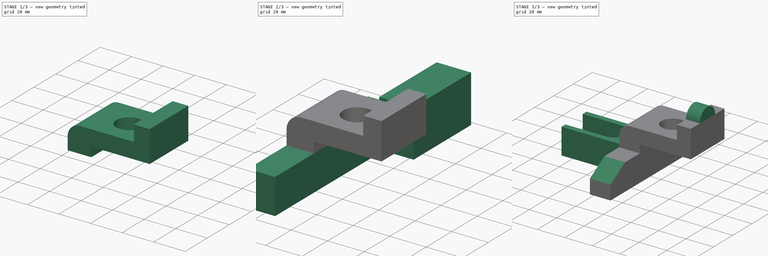
[diagram: build sequence overview — one tinted view per stage of 3, left to right]
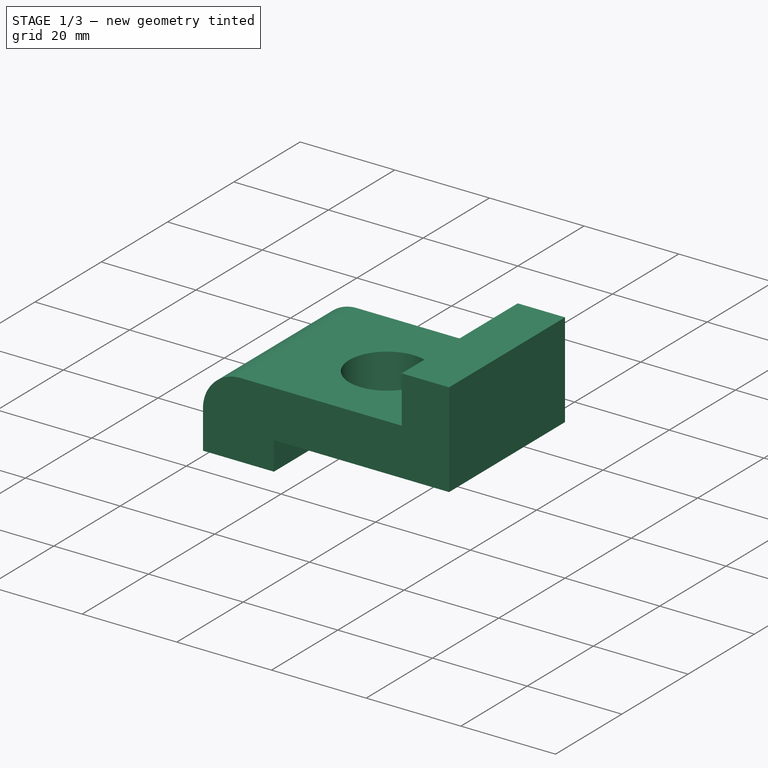
[diagram: stage 1 of 3 — iso view after this stage's code; geometry added in this stage tinted green]
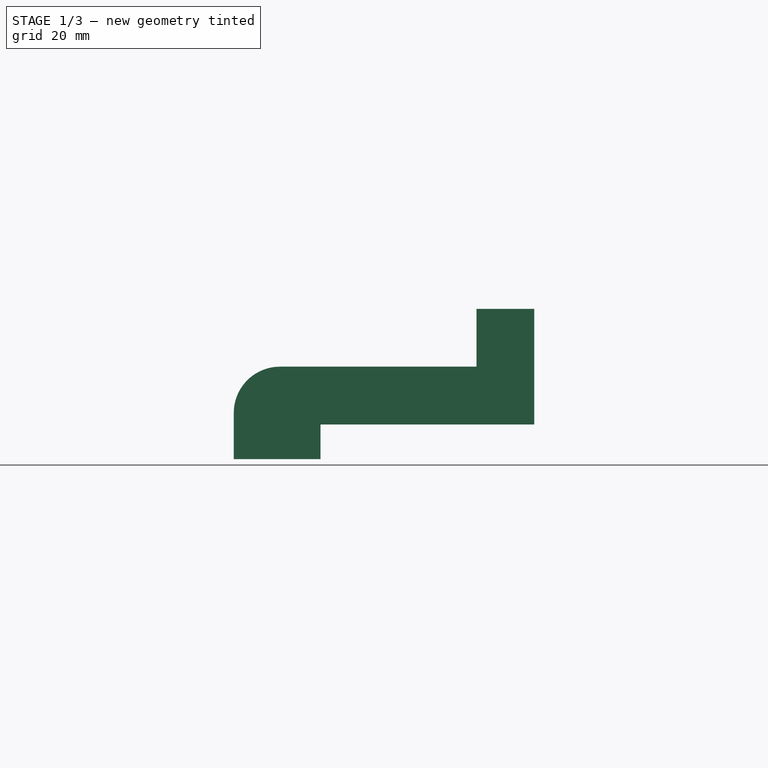
[diagram: stage 1 of 3 — front view after this stage's code; geometry added in this stage tinted green]
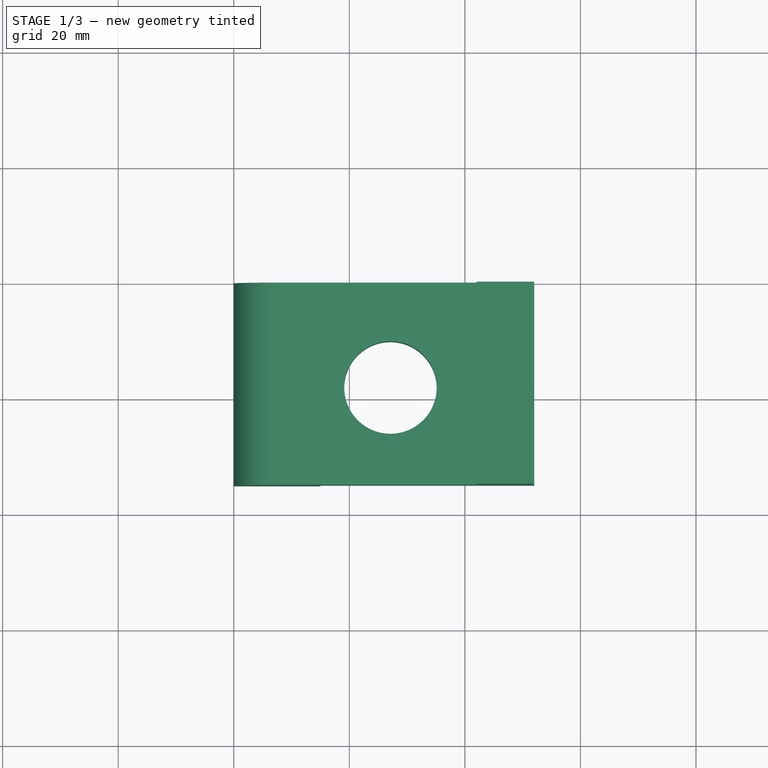
[diagram: stage 1 of 3 — top view after this stage's code; geometry added in this stage tinted green]
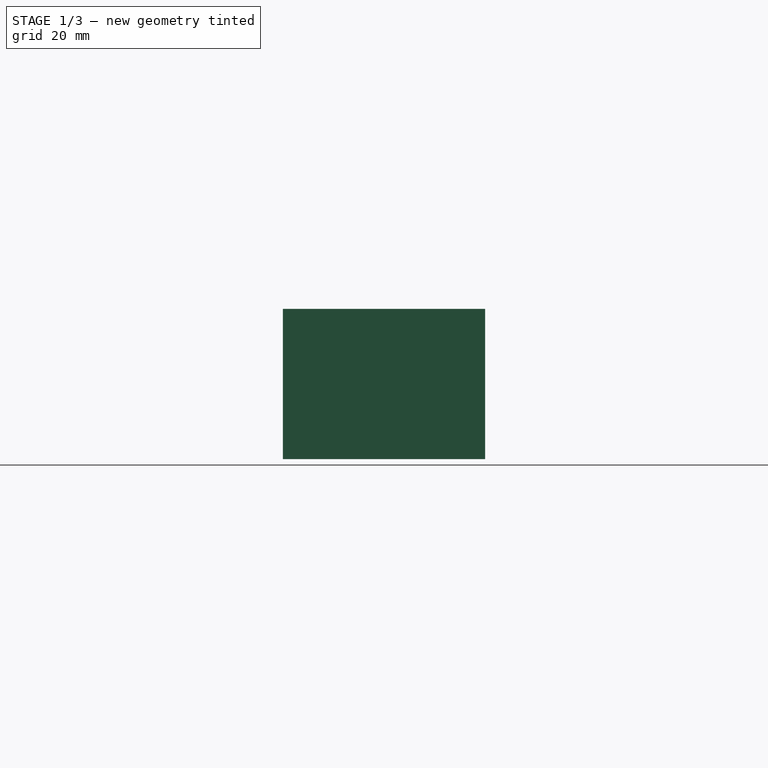
[diagram: stage 1 of 3 — right view after this stage's code; geometry added in this stage tinted green]
FCSTD DOCUMENT  (FreeCAD 0.19R24267 +148 (Git))
Label: Ex14
License: All rights reserved
LicenseURL: http://en.wikipedia.org/wiki/All_rights_reserved
objects: PartDesign::Plane×6, Sketcher::SketchObject×5, PartDesign::Pad×3, PartDesign::Pocket×2, PartDesign::Chamfer×1, PartDesign::Body×1
note: 24 computed .brp shape members not serialized (recipe doc carries the construction recipe); baked Part::Feature solids carry a one-line shape summary decoded from their .brp

FEATURE [Sketcher::SketchObject] Sketch
  FullyConstrained = true
  MapMode = 5
  Placement = pos=(0,0,0) rot=(1,0,0;1.5708rad)
  Support = -> [XZ_Plane]
  sketch-geometry (10):
    g0: LineSegment StartX=0 StartY=0 StartZ=0 EndX=0 EndY=2 EndZ=0
    g1: LineSegment StartX=8 StartY=10 StartZ=0 EndX=42 EndY=10 EndZ=0
    g2: LineSegment StartX=42 StartY=10 StartZ=0 EndX=42 EndY=20 EndZ=0
    g3: LineSegment StartX=42 StartY=20 StartZ=0 EndX=52 EndY=20 EndZ=0
    g4: LineSegment StartX=52 StartY=20 StartZ=0 EndX=52 EndY=0 EndZ=0
    g5: LineSegment StartX=52 StartY=0 StartZ=0 EndX=15 EndY=0 EndZ=0
    g6: LineSegment StartX=15 StartY=0 StartZ=0 EndX=15 EndY=-6 EndZ=0
    g7: LineSegment StartX=15 StartY=-6 StartZ=0 EndX=0 EndY=-6 EndZ=0
    g8: LineSegment StartX=0 StartY=-6 StartZ=0 EndX=0 EndY=0 EndZ=0
    g9: ArcOfCircle CenterX=8 CenterY=2 CenterZ=0 NormalX=0 NormalY=0 NormalZ=1 AngleXU=0 Radius=8 StartAngle=1.5708 EndAngle=3.14159
  constraints (28):
    c: Coincident(g-1,g0)
    c: Vertical(g0)
    c: Horizontal(g1)
    c: Coincident(g1,g2)
    c: Vertical(g2)
    c: Coincident(g2,g3)
    c: Horizontal(g3)
    c: Coincident(g3,g4)
    c: PointOnObject(g4,g-1)
    c: Vertical(g4)
    c: Coincident(g4,g5)
    c: Horizontal(g5)
    c: Coincident(g5,g6)
    c: Vertical(g6)
    c: Coincident(g6,g7)
    c: PointOnObject(g7,g-2)
    c: Horizontal(g7)
    c: Coincident(g7,g8)
    c: Coincident(g8,g0)
    c: Tangent(g0,g9) = 1.5708
    c: Tangent(g1,g9) = 1.5708
    c: DistanceY(g1,g2) = 10
    c: DistanceY(g6,g5) = 6
    c: DistanceY(g4,g4) = 20
    c: Radius(g9) = 8
    c: DistanceX(g7,g1) = 42
    c: DistanceX(g3,g3) = 10
    c: DistanceX(g7,g7) = 15
FEATURE [PartDesign::Pad] Pad
  Direction = (1,1,1)
  Length = 35
  Length2 = 100
  Placement = pos=(0,0,0) rot=(1,0,0;1.5708rad)
  Profile = -> Sketch
  Type = 0
FEATURE [PartDesign::Plane] DatumPlane
  Length = 116.098
  MapMode = 5
  Placement = pos=(0,6.7e-15,10) rot=(0,0,1;3.14159rad)
  ResizeMode = 0
  Support = -> [Pad]
  Width = 113.098
FEATURE [Sketcher::SketchObject] Sketch001
  FullyConstrained = false
  MapMode = 5
  Placement = pos=(0,6.7e-15,10) rot=(0,0,1;3.14159rad)
  Support = -> [DatumPlane]
  sketch-geometry (1):
    g0: Circle CenterX=-27.1165 CenterY=18.1591 CenterZ=0 NormalX=0 NormalY=0 NormalZ=1 AngleXU=0 Radius=8
  constraints (1):
    c: Radius(g0) = 8
FEATURE [PartDesign::Pocket] Pocket
  BaseFeature = -> Pad
  Length = 15
  Length2 = 100
  Placement = pos=(0,0,0) rot=(1,0,0;1.5708rad)
  Profile = -> Sketch001
  Type = 1
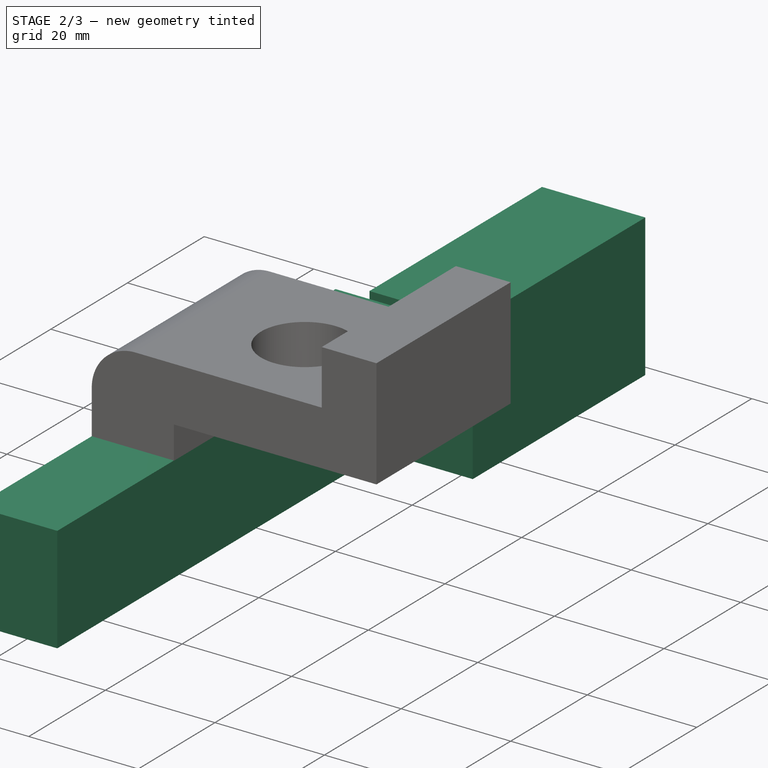
[diagram: stage 2 of 3 — iso view after this stage's code; geometry added in this stage tinted green]
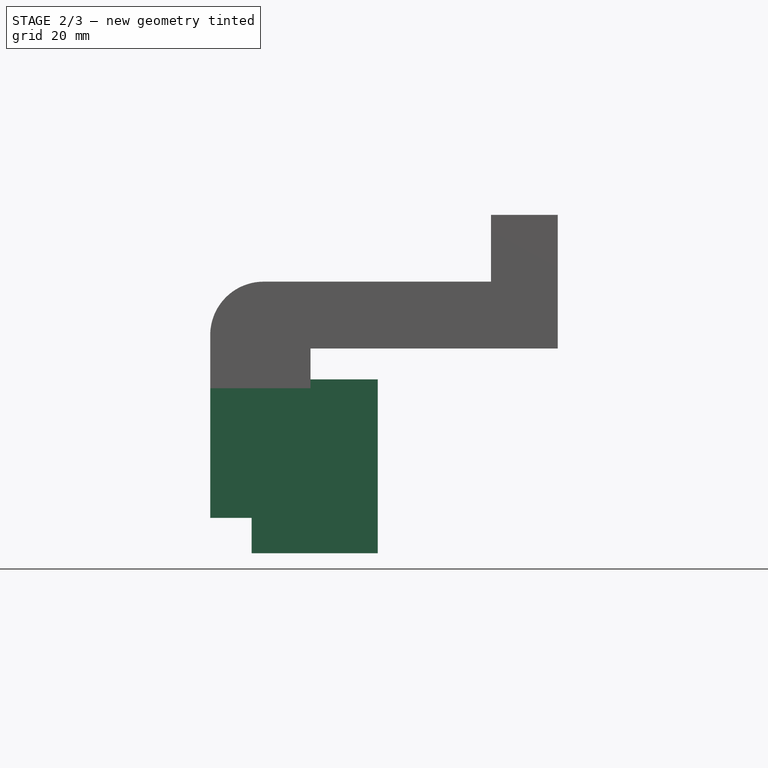
[diagram: stage 2 of 3 — front view after this stage's code; geometry added in this stage tinted green]
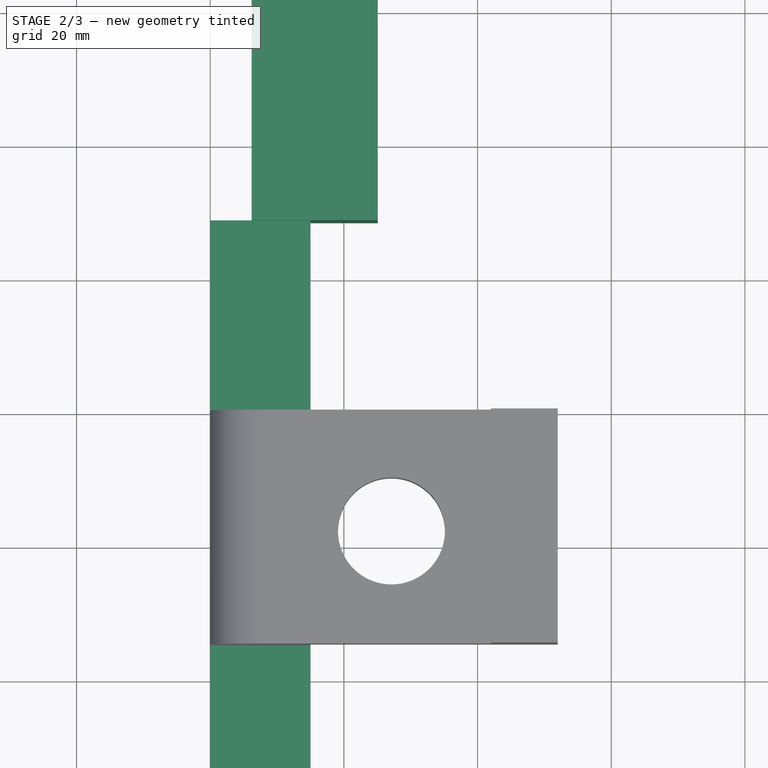
[diagram: stage 2 of 3 — top view after this stage's code; geometry added in this stage tinted green]
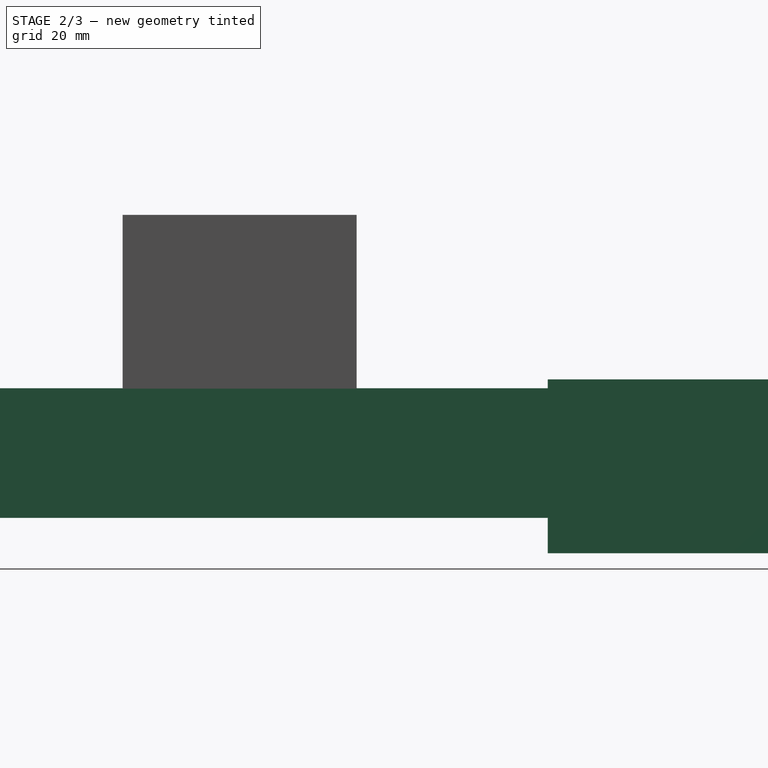
[diagram: stage 2 of 3 — right view after this stage's code; geometry added in this stage tinted green]
FEATURE [PartDesign::Plane] DatumPlane001
  Length = 67.3326
  MapMode = 5
  Placement = pos=(42,0,0) rot=(0.707107,0,-0.707107;3.14159rad)
  ResizeMode = 0
  Support = -> [Pocket]
  Width = 108.142
FEATURE [PartDesign::Plane] DatumPlane002
  Length = 67.3326
  MapMode = 5
  Placement = pos=(15,0,0) rot=(0.707107,0,0.707107;3.14159rad)
  ResizeMode = 0
  Width = 108.142
FEATURE [PartDesign::Plane] DatumPlane003
  Length = 67.3326
  MapMode = 5
  Placement = pos=(-5.1e-15,0,0) rot=(-0.707107,0,0.707107;3.14159rad)
  ResizeMode = 0
  Width = 108.142
FEATURE [Sketcher::SketchObject] Sketch003
  FullyConstrained = false
  MapMode = 5
  Placement = pos=(-5.1e-15,0,0) rot=(-0.707107,0,0.707107;3.14159rad)
  Support = -> [DatumPlane003]
  sketch-geometry (4):
    g0: LineSegment StartX=5.95058 StartY=-28.5952 StartZ=0 EndX=25.338 EndY=-28.5952 EndZ=0
    g1: LineSegment StartX=25.338 StartY=-28.5952 StartZ=0 EndX=25.338 EndY=65.4048 EndZ=0
    g2: LineSegment StartX=25.338 StartY=65.4048 StartZ=0 EndX=5.95058 EndY=65.4048 EndZ=0
    g3: LineSegment StartX=5.95058 StartY=-28.5952 StartZ=0 EndX=5.95058 EndY=65.4048 EndZ=0
  constraints (9):
    c: Coincident(g0,g1)
    c: Coincident(g1,g2)
    c: Coincident(g3,g0)
    c: Coincident(g3,g2)
    c: Horizontal(g0)
    c: Horizontal(g2)
    c: Vertical(g3)
    c: Vertical(g1)
    c: DistanceY(g1,g1) = 94
FEATURE [PartDesign::Pad] Pad002
  BaseFeature = -> Pocket
  Direction = (1,1,1)
  Length = 15
  Length2 = 100
  Placement = pos=(0,0,0) rot=(1,0,0;1.5708rad)
  Profile = -> Sketch003
  Reversed = true
  Type = 0
FEATURE [PartDesign::Plane] DatumPlane004
  Length = 111.366
  MapMode = 5
  Placement = pos=(0,28.5952,-1.27e-14) rot=(-1,0,0;1.5708rad)
  ResizeMode = 0
  Support = -> [Pad002]
  Width = 67.5565
FEATURE [Sketcher::SketchObject] Sketch004
  FullyConstrained = false
  MapMode = 5
  Placement = pos=(0,28.5952,-1.27e-14) rot=(-1,0,0;1.5708rad)
  Support = -> [DatumPlane004]
  sketch-geometry (4):
    g0: LineSegment StartX=6.19188 StartY=4.6224 StartZ=0 EndX=25.0573 EndY=4.6224 EndZ=0
    g1: LineSegment StartX=25.0573 StartY=4.6224 StartZ=0 EndX=25.0573 EndY=30.6224 EndZ=0
    g2: LineSegment StartX=25.0573 StartY=30.6224 StartZ=0 EndX=6.19188 EndY=30.6224 EndZ=0
    g3: LineSegment StartX=6.19188 StartY=30.6224 StartZ=0 EndX=6.19188 EndY=4.6224 EndZ=0
  constraints (9):
    c: Coincident(g0,g1)
    c: Coincident(g1,g2)
    c: Coincident(g2,g3)
    c: Coincident(g3,g0)
    c: Horizontal(g0)
    c: Horizontal(g2)
    c: Vertical(g1)
    c: Vertical(g3)
    c: DistanceY(g1,g1) = 26
FEATURE [PartDesign::Pad] Pad003
  BaseFeature = -> Pad002
  Direction = (1,1,1)
  Length = 45
  Length2 = 100
  Placement = pos=(0,0,0) rot=(1,0,0;1.5708rad)
  Profile = -> Sketch004
  Type = 0
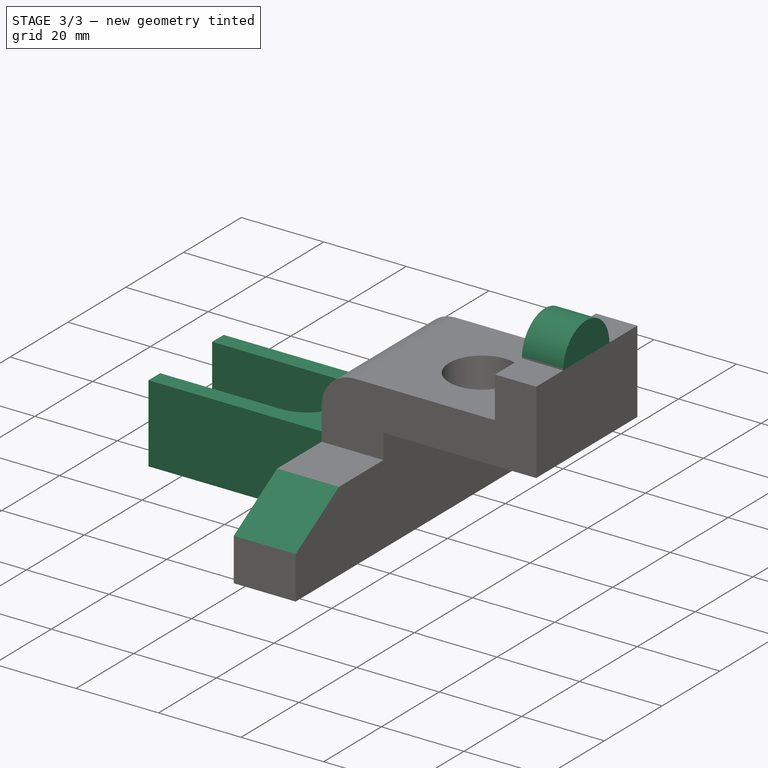
[diagram: stage 3 of 3 — iso view after this stage's code; geometry added in this stage tinted green]
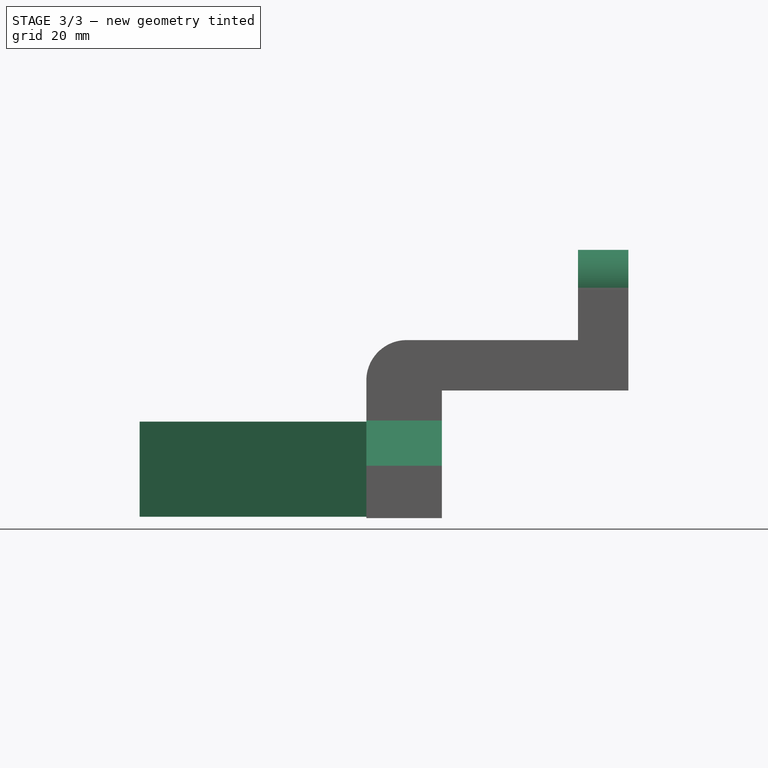
[diagram: stage 3 of 3 — front view after this stage's code; geometry added in this stage tinted green]
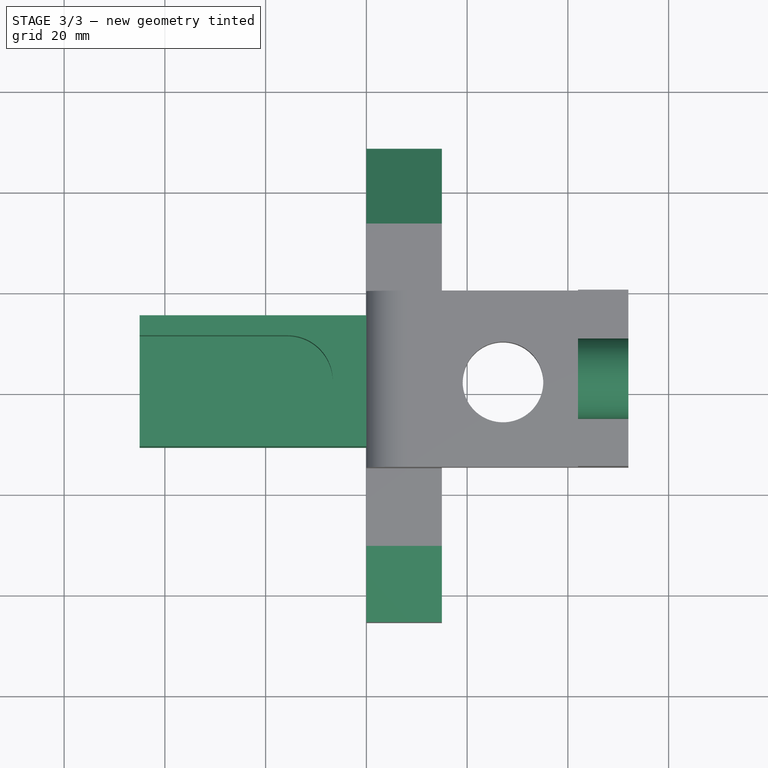
[diagram: stage 3 of 3 — top view after this stage's code; geometry added in this stage tinted green]
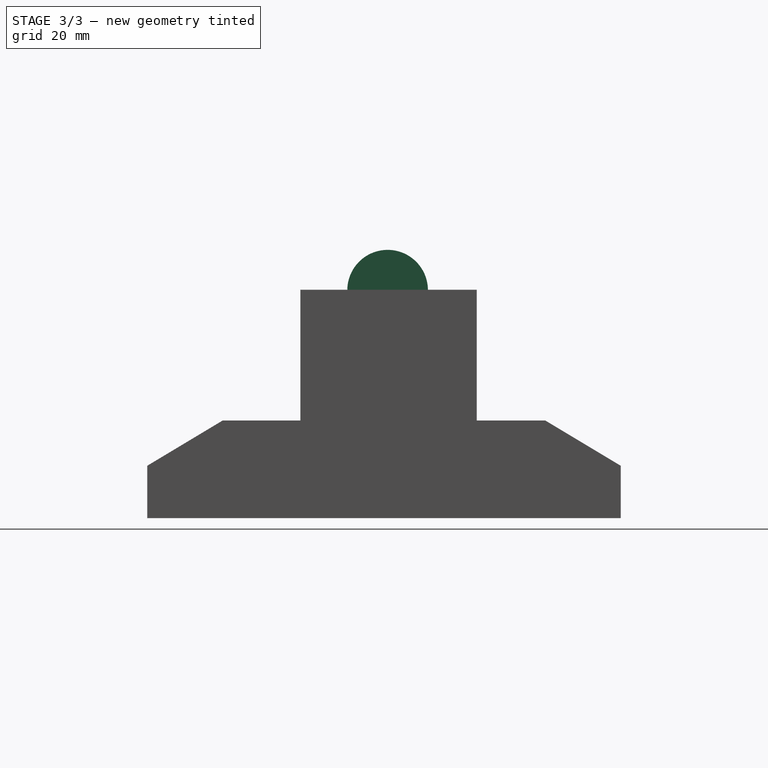
[diagram: stage 3 of 3 — right view after this stage's code; geometry added in this stage tinted green]
FEATURE [PartDesign::Plane] DatumPlane005
  Length = 116.098
  MapMode = 5
  Placement = pos=(-1.4e-15,-2.7e-15,-6.19188) rot=(0,0,1;3.14159rad)
  ResizeMode = 0
  Support = -> [Pad003]
  Width = 113.098
FEATURE [Sketcher::SketchObject] Sketch005
  FullyConstrained = false
  MapMode = 5
  Placement = pos=(-1.4e-15,-2.7e-15,-6.19188) rot=(0,0,1;3.14159rad)
  Support = -> [DatumPlane005]
  sketch-geometry (4):
    g0: ArcOfCircle CenterX=15.6689 CenterY=17.6049 CenterZ=0 NormalX=0 NormalY=0 NormalZ=1 AngleXU=0 Radius=9 StartAngle=1.5708 EndAngle=4.71239
    g1: LineSegment StartX=54.0972 StartY=26.6049 StartZ=0 EndX=54.0972 EndY=8.60493 EndZ=0
    g2: LineSegment StartX=54.0972 StartY=8.60493 StartZ=0 EndX=15.6689 EndY=8.60493 EndZ=0
    g3: LineSegment StartX=15.6689 StartY=26.6049 StartZ=0 EndX=54.0972 EndY=26.6049 EndZ=0
  constraints (8):
    c: Vertical(g1)
    c: Coincident(g2,g1)
    c: Horizontal(g2)
    c: Coincident(g3,g1)
    c: Horizontal(g3)
    c: Tangent(g0,g3) = 1.5708
    c: Radius(g0) = 9
    c: Tangent(g0,g2) = 1.5708
FEATURE [PartDesign::Pocket] Pocket001
  BaseFeature = -> Pad003
  Length = 12
  Length2 = 100
  Placement = pos=(0,0,0) rot=(1,0,0;1.5708rad)
  Profile = -> Sketch005
  Type = 0
FEATURE [PartDesign::Chamfer] Chamfer
  Angle = 45
  Base = -> Pocket001 [Edge45,Edge35]
  BaseFeature = -> Pocket001
  ChamferType = 1
  FlipDirection = false
  Placement = pos=(0,0,0) rot=(1,0,0;1.5708rad)
  Size = 15
  Size2 = 9
  SupportTransform = false
FEATURE [PartDesign::Body] Body
  Group = -> [Sketch,Pad,DatumPlane,Sketch001,Pocket,DatumPlane001,DatumPlane002,DatumPlane003,Sketch003,Pad002,DatumPlane004,Sketch004,Pad003,DatumPlane005,Sketch005,Pocket001,Chamfer]
  Origin = -> Origin
  Tip = -> Chamfer
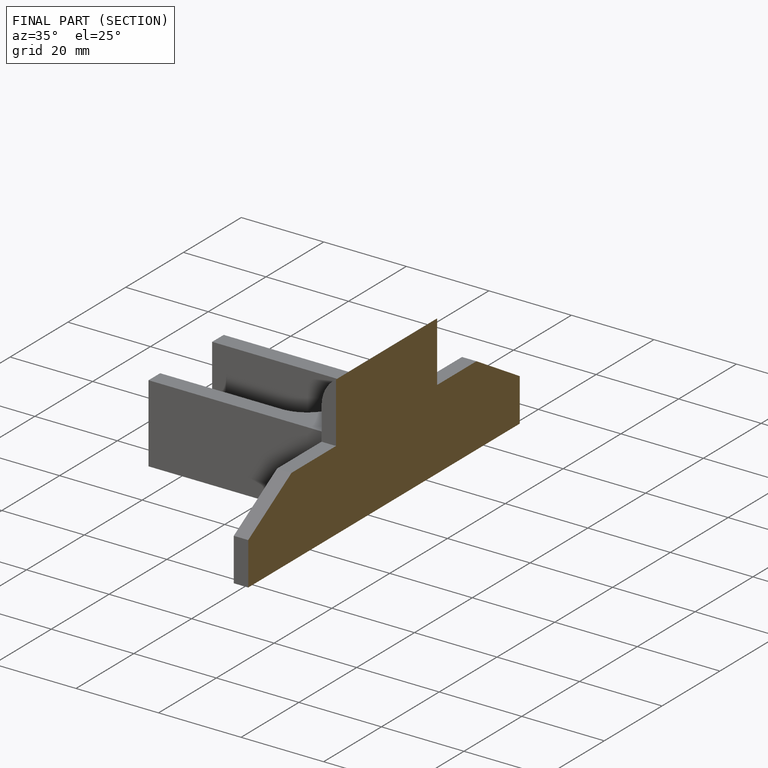
[diagram: finished part — half-section view (interior)]
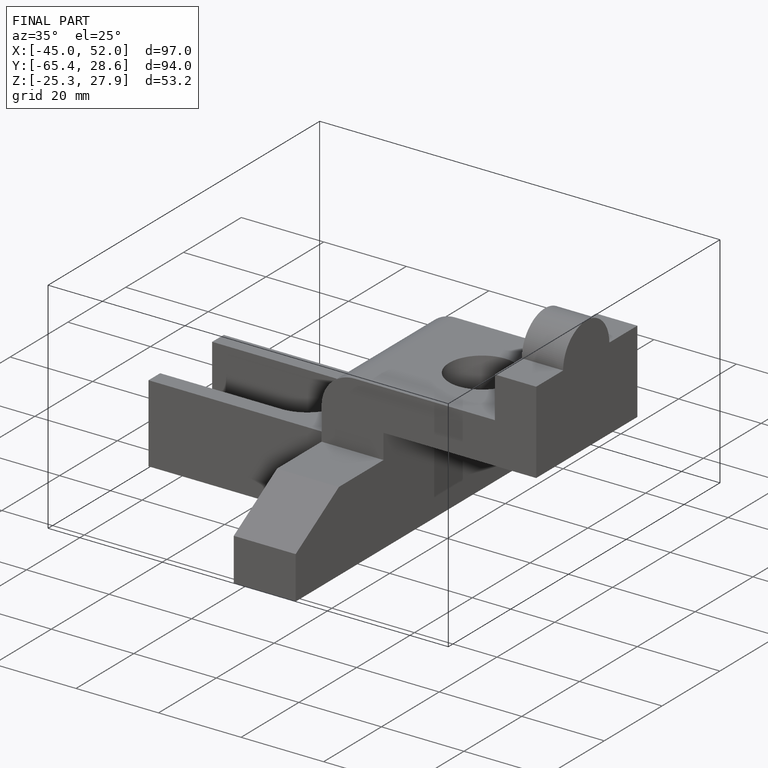
[diagram: finished part — iso view with bounding-box wireframe]
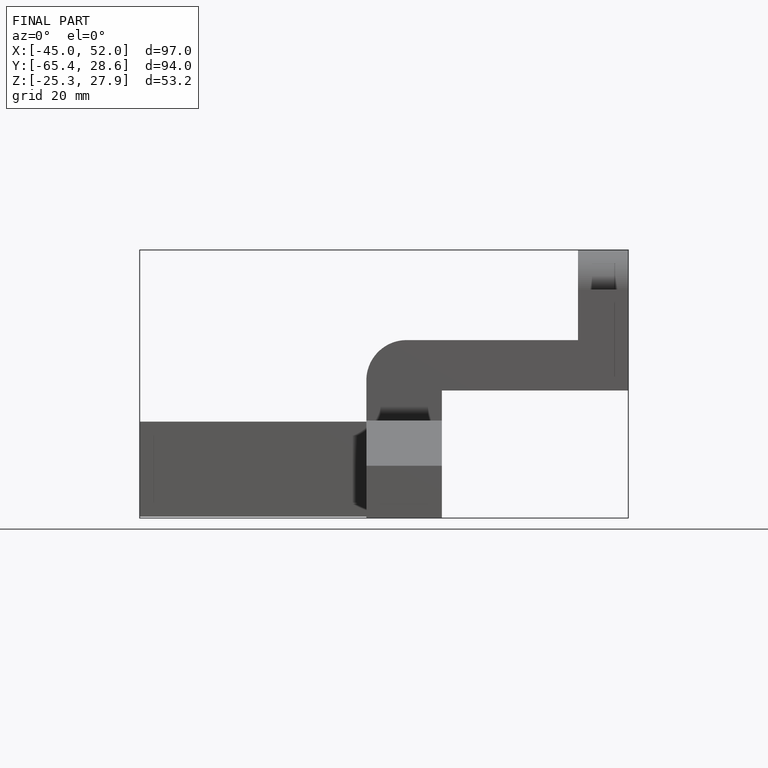
[diagram: finished part — front view with bounding-box wireframe]
